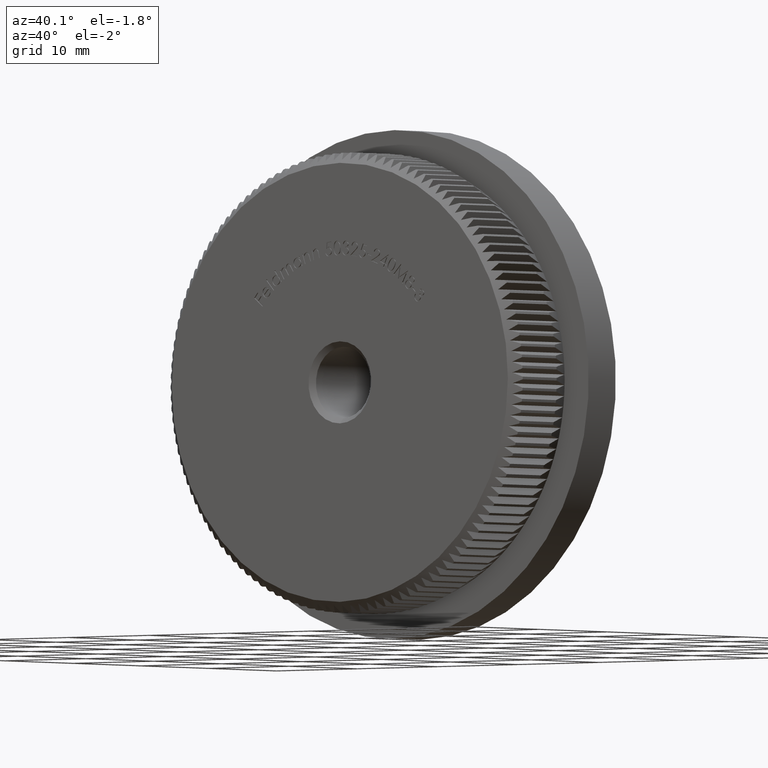
[diagram: clean part render]
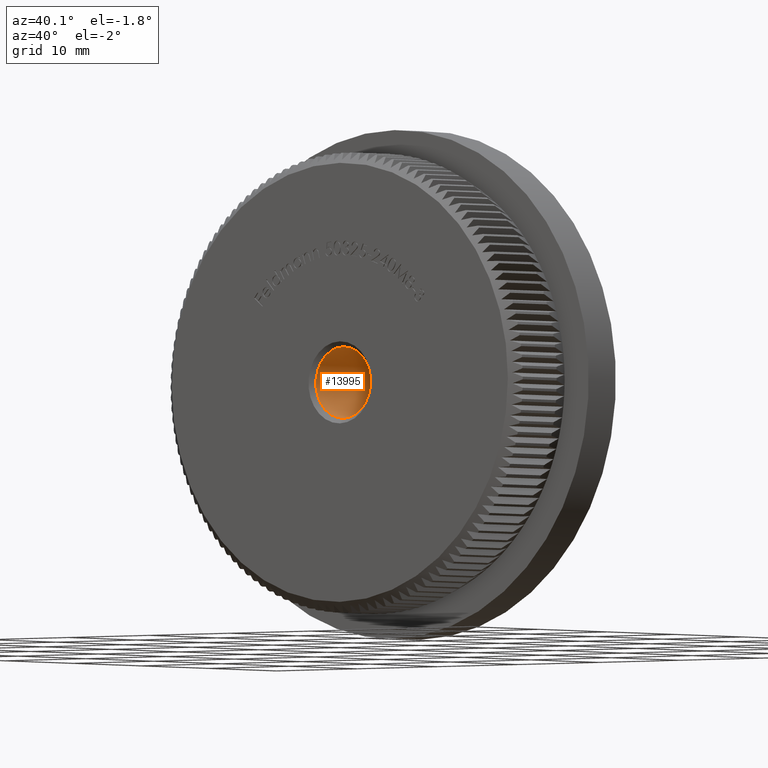
[diagram: same view with one face highlighted and labeled with its STEP entity id]
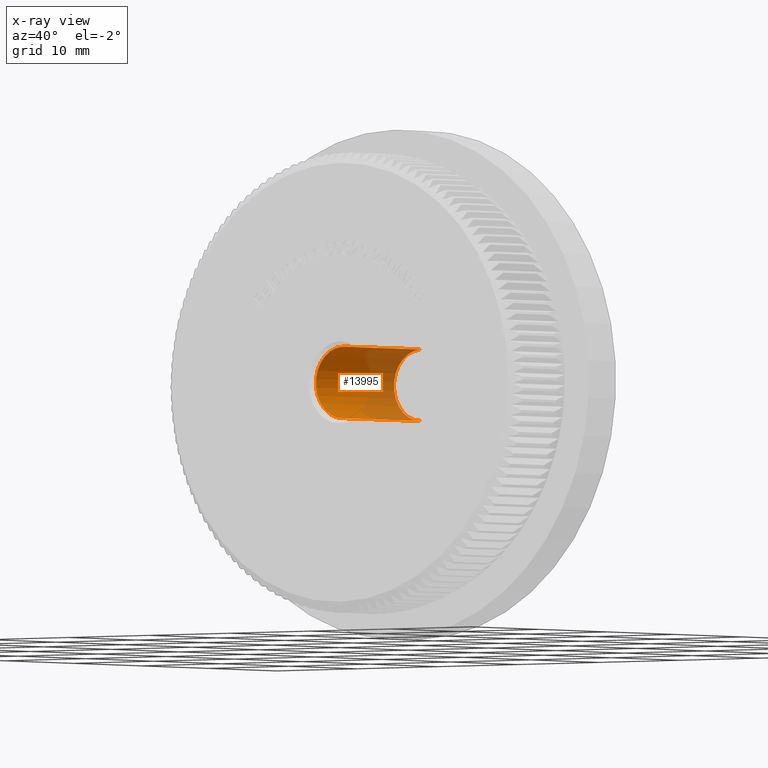
[diagram: x-ray of the same camera — body ghosted, the highlighted face saturated]
A machine part, auxiliary view. The second image highlights one B-rep face of the part: STEP entity #13995.
The next image is the same camera in x-ray: the body ghosted, the highlighted face saturated — about 42% of this face is hidden behind the body in this view.
In plain terms, the highlighted cylindrical surface (edge-blend (fillet) strip) has radius 3.4 mm, axis along (-0, -1, -0).
Its self-contained STEP definition (entity closure, byte-faithful):
#943 = ORIENTED_EDGE ( 'NONE', *, *, #2626, .T. ) ;
#1958 = CIRCLE ( 'NONE', #22002, 3.399999999999997700 ) ;
#2626 = EDGE_CURVE ( 'NONE', #28859, #7184, #15858, .T. ) ;
#3159 = CYLINDRICAL_SURFACE ( 'NONE', #31727, 3.399999999999997700 ) ;
#4301 = DIRECTION ( 'NONE',  ( -0.0000000000000000000, -1.000000000000000000, -0.0000000000000000000 ) ) ;
#5214 = ORIENTED_EDGE ( 'NONE', *, *, #28240, .T. ) ;
#6880 = AXIS2_PLACEMENT_3D ( 'NONE', #7244, #24844, #12286 ) ;
#7184 = VERTEX_POINT ( 'NONE', #18871 ) ;
#7244 = CARTESIAN_POINT ( 'NONE',  ( 0.0000000000000000000, 0.5000000000000085500, 0.0000000000000000000 ) ) ;
#8350 = LINE ( 'NONE', #13379, #15839 ) ;
#11805 = LINE ( 'NONE', #19310, #22440 ) ;
#12259 = CARTESIAN_POINT ( 'NONE',  ( 0.0000000000000000000, 0.0000000000000000000, 0.0000000000000000000 ) ) ;
#12286 = DIRECTION ( 'NONE',  ( 0.0000000000000000000, 0.0000000000000000000, -1.000000000000000000 ) ) ;
#13379 = CARTESIAN_POINT ( 'NONE',  ( 4.163799117100997600E-016, 0.0000000000000000000, 3.399999999999997700 ) ) ;
#13995 = ADVANCED_FACE ( 'NONE', ( #23647 ), #3159, .F. ) ;
#14172 = DIRECTION ( 'NONE',  ( -0.0000000000000000000, 1.000000000000000000, -0.0000000000000000000 ) ) ;
#14908 = DIRECTION ( 'NONE',  ( -0.0000000000000000000, -1.000000000000000000, -0.0000000000000000000 ) ) ;
#15839 = VECTOR ( 'NONE', #21788, 1000.000000000000000 ) ;
#15858 = CIRCLE ( 'NONE', #6880, 3.399999999999997700 ) ;
#16645 = CARTESIAN_POINT ( 'NONE',  ( 0.0000000000000000000, 11.99999999999998000, 0.0000000000000000000 ) ) ;
#17688 = CARTESIAN_POINT ( 'NONE',  ( 0.0000000000000000000, 11.99999999999998000, -3.399999999999997700 ) ) ;
#18871 = CARTESIAN_POINT ( 'NONE',  ( 0.0000000000000000000, 0.5000000000000085500, -3.399999999999997700 ) ) ;
#19310 = CARTESIAN_POINT ( 'NONE',  ( 0.0000000000000000000, 0.0000000000000000000, -3.399999999999997700 ) ) ;
#19407 = EDGE_LOOP ( 'NONE', ( #5214, #26942, #943, #20838 ) ) ;
#19808 = DIRECTION ( 'NONE',  ( 0.0000000000000000000, 0.0000000000000000000, -1.000000000000000000 ) ) ;
#20243 = CARTESIAN_POINT ( 'NONE',  ( 4.163799117100997600E-016, 0.5000000000000085500, 3.399999999999997700 ) ) ;
#20460 = VERTEX_POINT ( 'NONE', #21602 ) ;
#20838 = ORIENTED_EDGE ( 'NONE', *, *, #28260, .F. ) ;
#21602 = CARTESIAN_POINT ( 'NONE',  ( 4.163799117100997600E-016, 11.99999999999998000, 3.399999999999997700 ) ) ;
#21788 = DIRECTION ( 'NONE',  ( -0.0000000000000000000, -1.000000000000000000, -0.0000000000000000000 ) ) ;
#22002 = AXIS2_PLACEMENT_3D ( 'NONE', #16645, #14172, #24542 ) ;
#22440 = VECTOR ( 'NONE', #4301, 1000.000000000000000 ) ;
#23412 = EDGE_CURVE ( 'NONE', #20460, #28859, #8350, .T. ) ;
#23647 = FACE_OUTER_BOUND ( 'NONE', #19407, .T. ) ;
#24171 = VERTEX_POINT ( 'NONE', #17688 ) ;
#24542 = DIRECTION ( 'NONE',  ( 0.0000000000000000000, 0.0000000000000000000, 1.000000000000000000 ) ) ;
#24844 = DIRECTION ( 'NONE',  ( 0.0000000000000000000, -1.000000000000000000, 0.0000000000000000000 ) ) ;
#26942 = ORIENTED_EDGE ( 'NONE', *, *, #23412, .T. ) ;
#28240 = EDGE_CURVE ( 'NONE', #24171, #20460, #1958, .T. ) ;
#28260 = EDGE_CURVE ( 'NONE', #24171, #7184, #11805, .T. ) ;
#28859 = VERTEX_POINT ( 'NONE', #20243 ) ;
#31727 = AXIS2_PLACEMENT_3D ( 'NONE', #12259, #14908, #19808 ) ;